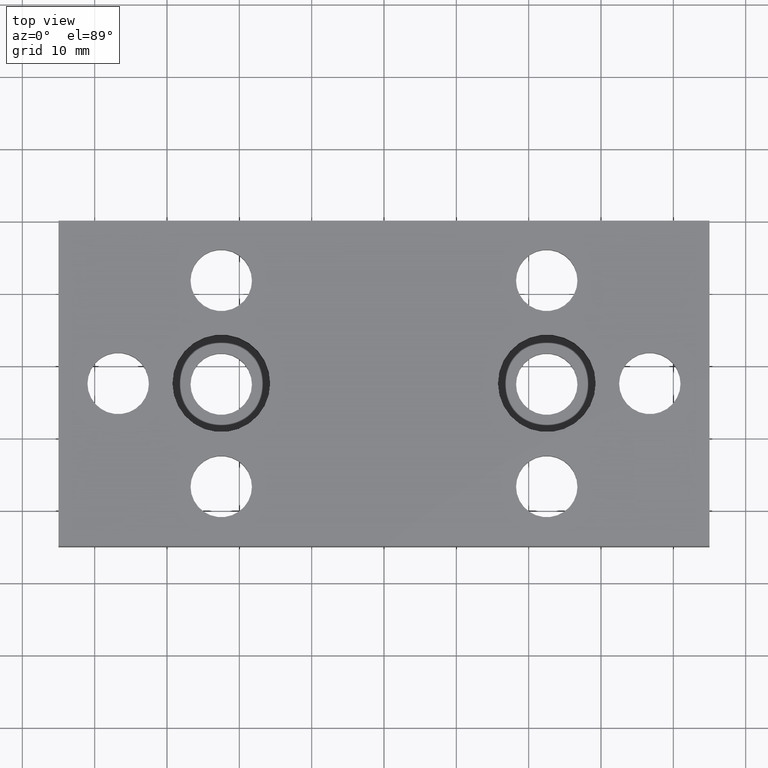
[diagram: clean part render]
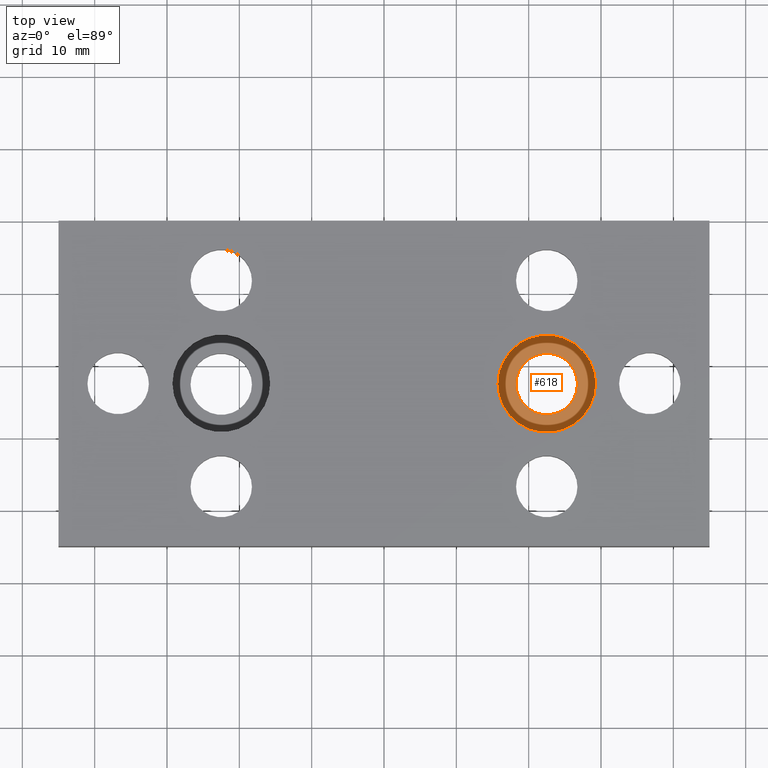
[diagram: same view with one face highlighted and labeled with its STEP entity id]
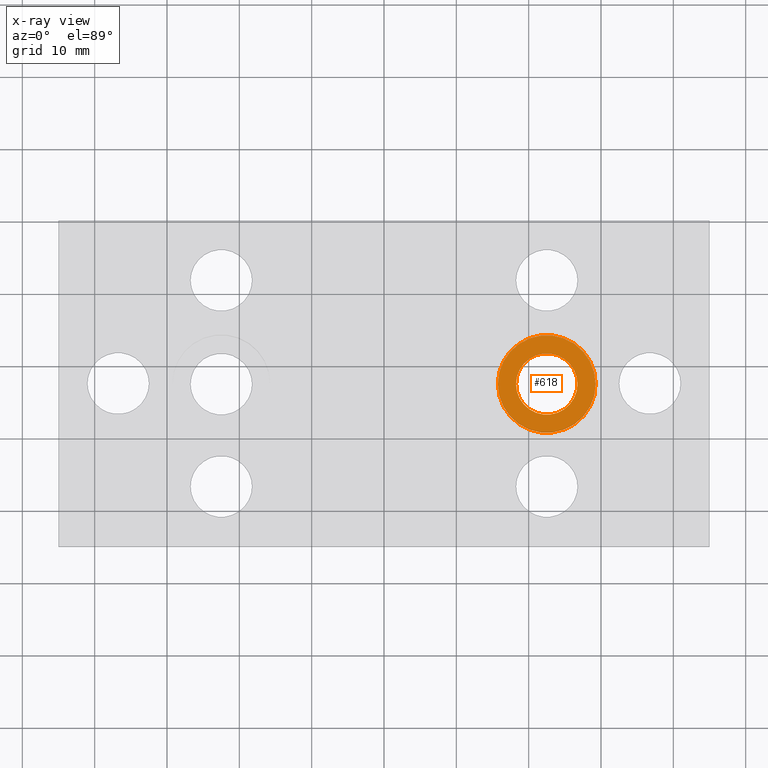
[diagram: x-ray of the same camera — body ghosted, the highlighted face saturated]
A machine part, top view. The second image highlights one B-rep face of the part: STEP entity #618.
The next image is the same camera in x-ray: the body ghosted, the highlighted face saturated — about 0% of this face is hidden behind the body in this view.
In plain terms, the highlighted planar face has unit normal (0, 0, -1).
Its self-contained STEP definition (entity closure, byte-faithful):
#559=CARTESIAN_POINT('',(26.749999999893134,-22.499999999910074,4.499999999999998));
#560=VERTEX_POINT('',#559);
#570=CARTESIAN_POINT('',(18.249999999926786,-22.499999999910074,4.499999999999998));
#571=VERTEX_POINT('',#570);
#572=CARTESIAN_POINT('',(22.499999999909960,-22.499999999910074,4.499999999999998));
#573=DIRECTION('',(0.0,6.123234E-017,1.0));
#574=DIRECTION('',(1.0,0.0,0.0));
#575=AXIS2_PLACEMENT_3D('',#572,#573,#574);
#576=CIRCLE('',#575,4.249999999983174);
#577=EDGE_CURVE('',#560,#571,#576,.T.);
#579=CARTESIAN_POINT('',(22.499999999909960,-22.499999999910074,4.499999999999998));
#580=DIRECTION('',(0.0,6.123234E-017,1.0));
#581=DIRECTION('',(1.0,0.0,0.0));
#582=AXIS2_PLACEMENT_3D('',#579,#580,#581);
#583=CIRCLE('',#582,4.249999999983174);
#584=EDGE_CURVE('',#571,#560,#583,.T.);
#589=CARTESIAN_POINT('',(8.999999999963620,-35.999999999856414,4.499999999999999));
#590=DIRECTION('',(0.0,0.0,-1.0));
#591=DIRECTION('',(0.0,1.0,0.0));
#592=AXIS2_PLACEMENT_3D('',#589,#590,#591);
#593=PLANE('',#592);
#594=CARTESIAN_POINT('',(29.249999999883130,-22.499999999910074,4.499999999999998));
#595=VERTEX_POINT('',#594);
#596=CARTESIAN_POINT('',(15.749999999936790,-22.499999999910074,4.499999999999998));
#597=VERTEX_POINT('',#596);
#598=CARTESIAN_POINT('',(22.499999999909960,-22.499999999910074,4.499999999999998));
#599=DIRECTION('',(0.0,6.123234E-017,1.0));
#600=DIRECTION('',(1.0,0.0,0.0));
#601=AXIS2_PLACEMENT_3D('',#598,#599,#600);
#602=CIRCLE('',#601,6.749999999973170);
#603=EDGE_CURVE('',#595,#597,#602,.T.);
#604=ORIENTED_EDGE('',*,*,#603,.T.);
#605=CARTESIAN_POINT('',(22.499999999909960,-22.499999999910074,4.499999999999998));
#606=DIRECTION('',(0.0,6.123234E-017,1.0));
#607=DIRECTION('',(1.0,0.0,0.0));
#608=AXIS2_PLACEMENT_3D('',#605,#606,#607);
#609=CIRCLE('',#608,6.749999999973170);
#610=EDGE_CURVE('',#597,#595,#609,.T.);
#611=ORIENTED_EDGE('',*,*,#610,.T.);
#612=EDGE_LOOP('',(#604,#611));
#613=FACE_OUTER_BOUND('',#612,.T.);
#614=ORIENTED_EDGE('',*,*,#584,.F.);
#615=ORIENTED_EDGE('',*,*,#577,.F.);
#616=EDGE_LOOP('',(#614,#615));
#617=FACE_BOUND('',#616,.T.);
#618=ADVANCED_FACE('',(#613,#617),#593,.F.);